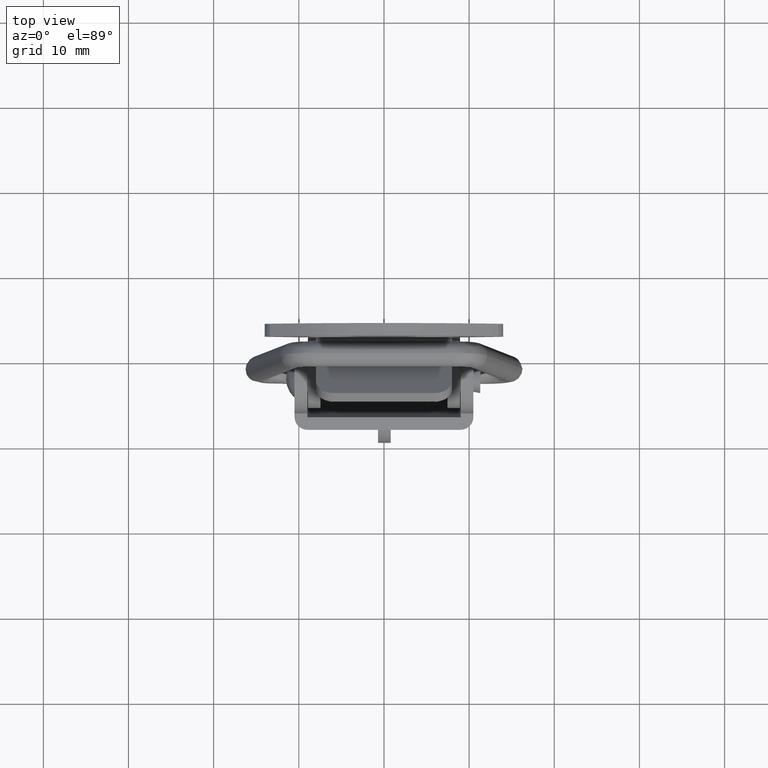
[diagram: clean part render]
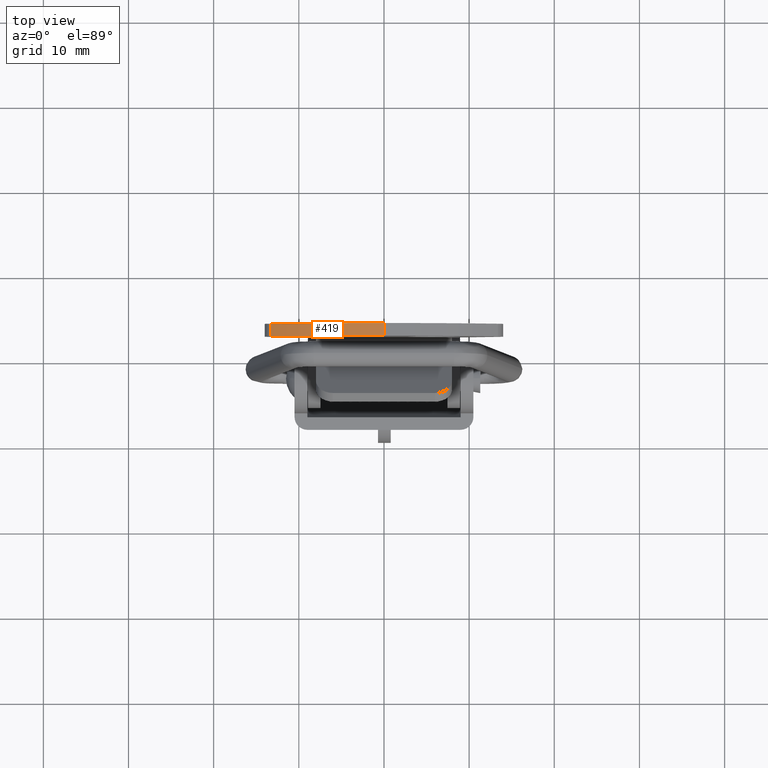
[diagram: same view with one face highlighted and labeled with its STEP entity id]
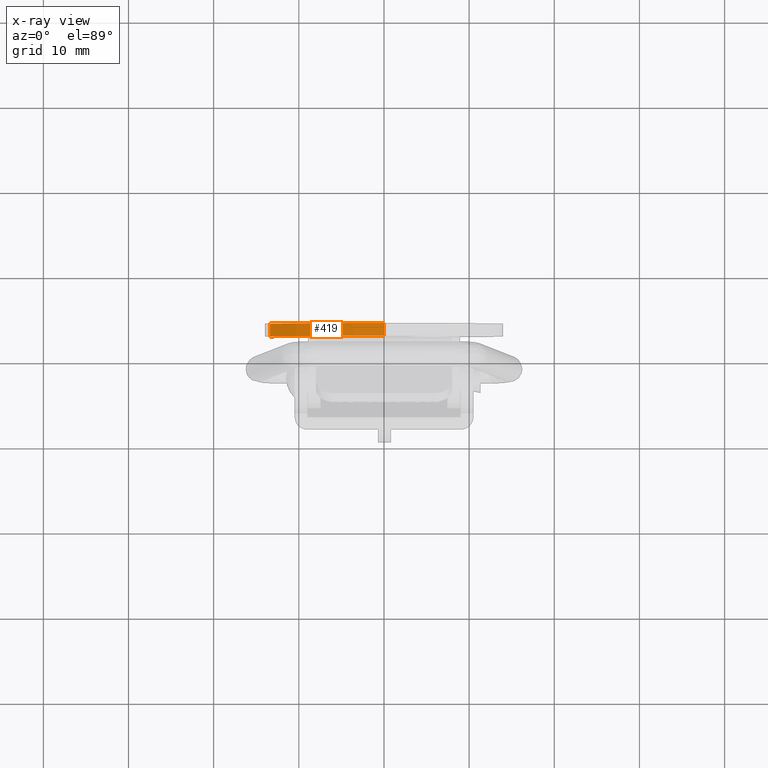
[diagram: x-ray of the same camera — body ghosted, the highlighted face saturated]
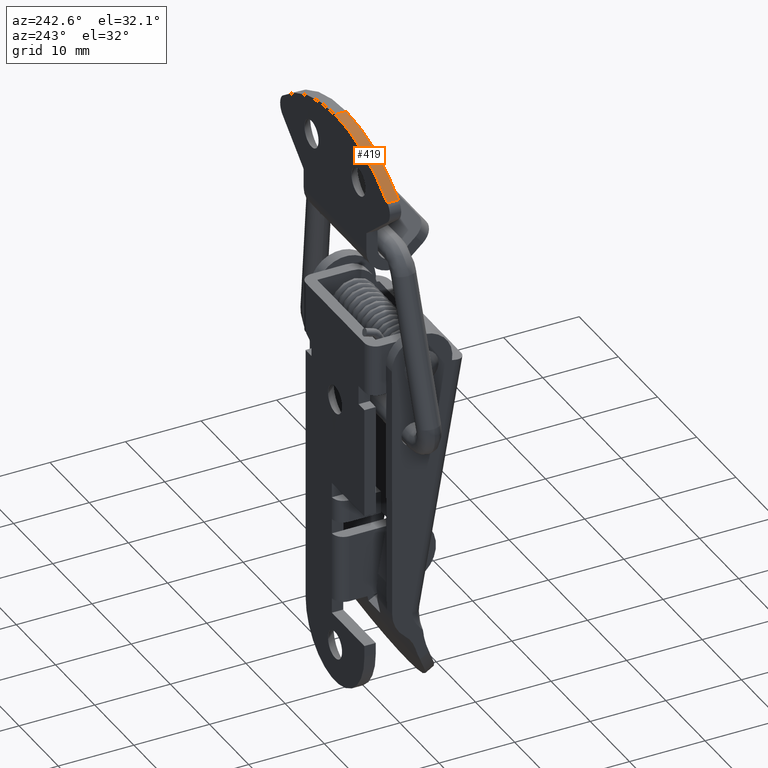
[diagram: same view with one face highlighted and labeled with its STEP entity id]
A machine part, top view. The second image highlights one B-rep face of the part: STEP entity #419.
The next image is the same camera in x-ray: the body ghosted, the highlighted face saturated — about 0% of this face is hidden behind the body in this view.
A second angle (auxiliary view) of the same face is appended — the face is thin or edge-on in the first view.
In plain terms, the highlighted cylindrical surface (partial cylindrical patch) has radius 21.0006 mm, axis along (0, -1, 0).
Its self-contained STEP definition (entity closure, byte-faithful):
#419=ADVANCED_FACE('',(#2047),#2046,.T.);
#2046=CYLINDRICAL_SURFACE('',#33674,2.10006220094E+01);
#2047=FACE_OUTER_BOUND('',#33675,.T.);
#33671=CARTESIAN_POINT('',(6.00037037752E+00,7.50000000000E-01,-1.50006220061E+01));
#33672=DIRECTION('',(0.00000000000E+00,-1.00000000000E+00,-0.00000000000E+00));
#33673=DIRECTION('',(-0.00000000000E+00,-0.00000000000E+00,-1.00000000000E+00));
#33674=AXIS2_PLACEMENT_3D('',#33671,#33672,#33673);
#33675=EDGE_LOOP('',(#34667,#34668,#34669,#34670));
#34667=ORIENTED_EDGE('',*,*,#35177,.F.);
#34668=ORIENTED_EDGE('',*,*,#35187,.F.);
#34669=ORIENTED_EDGE('',*,*,#35165,.T.);
#34670=ORIENTED_EDGE('',*,*,#35161,.T.);
#35161=EDGE_CURVE('',#38126,#38118,#38127,.T.);
#35165=EDGE_CURVE('',#38152,#38126,#38153,.T.);
#35177=EDGE_CURVE('',#38227,#38118,#38234,.T.);
#35187=EDGE_CURVE('',#38152,#38227,#38299,.T.);
#38118=VERTEX_POINT('',#40632);
#38126=VERTEX_POINT('',#40638);
#38127=LINE('',#40639,#40640);
#38152=VERTEX_POINT('',#40653);
#38153=CIRCLE('',#40657,2.10006220094E+01);
#38227=VERTEX_POINT('',#40707);
#38234=CIRCLE('',#40715,2.10006220094E+01);
#38299=LINE('',#40753,#40754);
#40632=CARTESIAN_POINT('',(-7.36360629228E+00,0.00000000000E+00,1.19907713769E+00));
#40638=CARTESIAN_POINT('',(-7.36360629228E+00,1.50000000000E+00,1.19907713769E+00));
#40639=CARTESIAN_POINT('',(-7.36360629228E+00,1.50000000000E+00,1.19907713769E+00));
#40640=VECTOR('',#40641,1.50000000000E+00);
#40641=DIRECTION('',(0.00000000000E+00,-1.00000000000E+00,0.00000000000E+00));
#40653=CARTESIAN_POINT('',(6.00000000000E+00,1.50000000000E+00,6.00000000000E+00));
#40654=CARTESIAN_POINT('',(6.00037037752E+00,1.50000000000E+00,-1.50006220061E+01));
#40655=DIRECTION('',(0.00000000000E+00,-1.00000000000E+00,0.00000000000E+00));
#40656=DIRECTION('',(1.76365023777E-05,-0.00000000000E+00,-9.99999999844E-01));
#40657=AXIS2_PLACEMENT_3D('',#40654,#40655,#40656);
#40707=CARTESIAN_POINT('',(6.00000000000E+00,0.00000000000E+00,6.00000000000E+00));
#40712=CARTESIAN_POINT('',(6.00037037752E+00,0.00000000000E+00,-1.50006220061E+01));
#40713=DIRECTION('',(0.00000000000E+00,-1.00000000000E+00,0.00000000000E+00));
#40714=DIRECTION('',(1.76365023777E-05,-0.00000000000E+00,-9.99999999844E-01));
#40715=AXIS2_PLACEMENT_3D('',#40712,#40713,#40714);
#40753=CARTESIAN_POINT('',(6.00000000000E+00,1.50000000000E+00,6.00000000000E+00));
#40754=VECTOR('',#40755,1.50000000000E+00);
#40755=DIRECTION('',(0.00000000000E+00,-1.00000000000E+00,0.00000000000E+00));